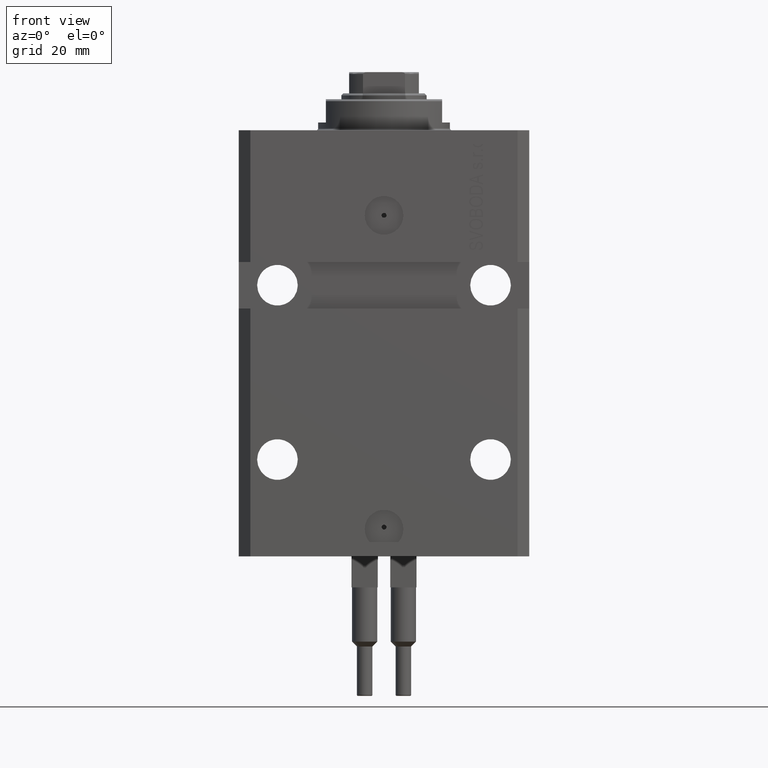
[diagram: clean part render]
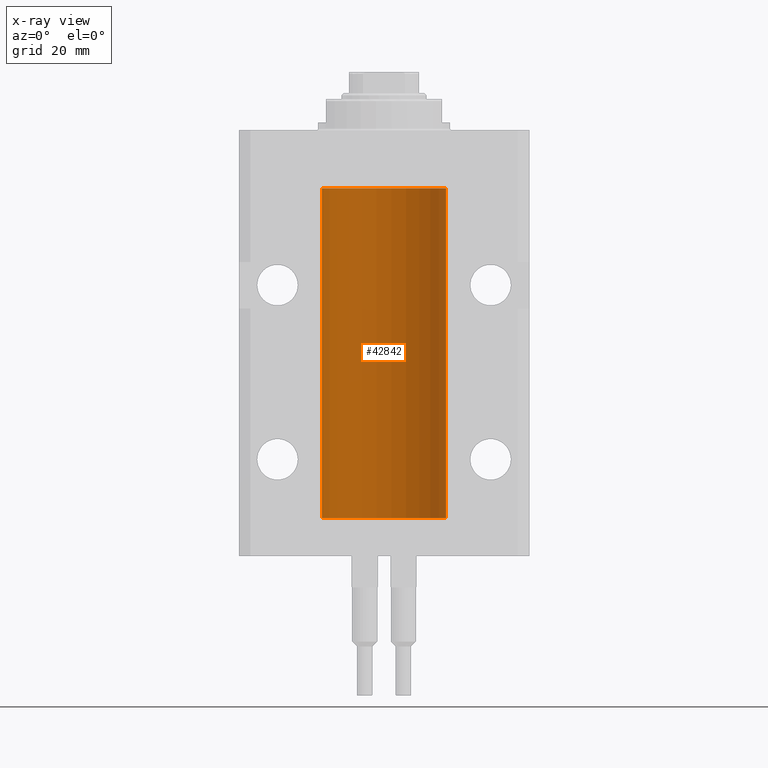
[diagram: x-ray — body ghosted, one internal face saturated and labeled with its STEP entity id]
A machine part, front view, then the same camera in x-ray: the body is ghosted and one INTERNAL B-rep face — a face not visible from any outside direction — is saturated and labeled: STEP entity #42842.
In plain terms, the highlighted cylindrical surface (partial cylindrical patch) has radius 16 mm, axis along (0, 0, 1).
Its self-contained STEP definition (entity closure, byte-faithful):
#228 = LINE ( 'NONE', #40404, #20150 ) ;
#307 = CARTESIAN_POINT ( 'NONE',  ( -15.98844267028591482, 0.6088369347963316081, -22.16324735024328518 ) ) ;
#2370 = AXIS2_PLACEMENT_3D ( 'NONE', #24267, #39606, #39118 ) ;
#2974 = CIRCLE ( 'NONE', #21649, 16.00000000000000000 ) ;
#3056 = VERTEX_POINT ( 'NONE', #34328 ) ;
#3435 = EDGE_CURVE ( 'NONE', #18519, #24024, #23548, .T. ) ;
#3538 = CARTESIAN_POINT ( 'NONE',  ( -16.00000000000013145, 3.685127046438747128E-13, -98.62500000000343903 ) ) ;
#4450 = CARTESIAN_POINT ( 'NONE',  ( -16.00000000000000000, 1.959434878635765131E-15, -100.0999999999999943 ) ) ;
#6395 = DIRECTION ( 'NONE',  ( 1.000000000000000000, 0.000000000000000000, 0.000000000000000000 ) ) ;
#6640 = CARTESIAN_POINT ( 'NONE',  ( -15.99707730059171240, 0.3150375992092407373, -21.45402333202571654 ) ) ;
#6731 = VECTOR ( 'NONE', #28397, 1000.000000000000000 ) ;
#7144 = DIRECTION ( 'NONE',  ( -0.000000000000000000, -0.000000000000000000, 1.000000000000000000 ) ) ;
#7374 = CARTESIAN_POINT ( 'NONE',  ( -15.99070426498503217, 0.5462220647145618058, -22.31460064614143590 ) ) ;
#7840 = CARTESIAN_POINT ( 'NONE',  ( 0.000000000000000000, 0.000000000000000000, -100.0999999999999943 ) ) ;
#8706 = ORIENTED_EDGE ( 'NONE', *, *, #8859, .F. ) ;
#8859 = EDGE_CURVE ( 'NONE', #3056, #16740, #228, .T. ) ;
#9263 = CARTESIAN_POINT ( 'NONE',  ( -16.00000000000000000, 1.643679961284177128E-16, -21.37499999999999645 ) ) ;
#9422 = CYLINDRICAL_SURFACE ( 'NONE', #2370, 16.00000000000000000 ) ;
#9520 = CARTESIAN_POINT ( 'NONE',  ( -15.98844267028590949, 0.6088369347963275002, -98.16324735024325321 ) ) ;
#9689 = EDGE_CURVE ( 'NONE', #44424, #12755, #31901, .T. ) ;
#10144 = FACE_OUTER_BOUND ( 'NONE', #26565, .T. ) ;
#11432 = VERTEX_POINT ( 'NONE', #3538 ) ;
#11617 = CARTESIAN_POINT ( 'NONE',  ( -16.00000000000000000, 1.959434878635765131E-15, -100.0999999999999943 ) ) ;
#12755 = VERTEX_POINT ( 'NONE', #20755 ) ;
#13426 = CARTESIAN_POINT ( 'NONE',  ( -15.98779057735153941, 0.6249419637998017141, -97.83670145863504786 ) ) ;
#13660 = CARTESIAN_POINT ( 'NONE',  ( -15.99548640841682712, 0.3843705577988784650, -97.50046628527007897 ) ) ;
#15630 = ORIENTED_EDGE ( 'NONE', *, *, #9689, .F. ) ;
#16200 = EDGE_CURVE ( 'NONE', #24024, #12755, #30793, .T. ) ;
#16488 = B_SPLINE_CURVE_WITH_KNOTS ( 'NONE', 3,
 ( #17321, #47010, #24838, #27103, #13660, #42884, #13426, #28735, #9520, #34422, #19802, #38312, #28493, #20713 ),
 .UNSPECIFIED., .F., .F.,
 ( 4, 2, 2, 2, 2, 2, 4 ),
 ( 1.003919637555167698E-18, 0.0002442776652680894158, 0.0004885553305361776391, 0.0009771106610723541940, 0.001221388326340463017, 0.001465665991608572274, 0.001954221322144760863 ),
 .UNSPECIFIED. ) ;
#16740 = VERTEX_POINT ( 'NONE', #18374 ) ;
#17321 = CARTESIAN_POINT ( 'NONE',  ( -16.00000000000000000, -1.303459030566954747E-14, -97.37500000000000000 ) ) ;
#18374 = CARTESIAN_POINT ( 'NONE',  ( -16.00000000000013145, 3.685127038166941002E-13, -22.62500000000341771 ) ) ;
#18519 = VERTEX_POINT ( 'NONE', #21497 ) ;
#19307 = EDGE_CURVE ( 'NONE', #45903, #11432, #45129, .T. ) ;
#19802 = CARTESIAN_POINT ( 'NONE',  ( -15.99228023727724057, 0.5003781296993360383, -98.38347829554236057 ) ) ;
#19979 = ORIENTED_EDGE ( 'NONE', *, *, #19307, .F. ) ;
#20048 = ORIENTED_EDGE ( 'NONE', *, *, #20078, .T. ) ;
#20078 = EDGE_CURVE ( 'NONE', #3056, #11432, #16488, .T. ) ;
#20150 = VECTOR ( 'NONE', #37245, 1000.000000000000000 ) ;
#20713 = CARTESIAN_POINT ( 'NONE',  ( -16.00000000000013145, 3.685127046438747128E-13, -98.62500000000343903 ) ) ;
#20755 = CARTESIAN_POINT ( 'NONE',  ( -16.00000000000000000, 1.959434878635765131E-15, -15.00000000000000000 ) ) ;
#21497 = CARTESIAN_POINT ( 'NONE',  ( 16.00000000000000000, 0.000000000000000000, -100.0999999999999943 ) ) ;
#21649 = AXIS2_PLACEMENT_3D ( 'NONE', #7840, #22682, #38009 ) ;
#21989 = CARTESIAN_POINT ( 'NONE',  ( -16.00000000000000711, 0.08259886010189904093, -21.37500000000000000 ) ) ;
#22256 = AXIS2_PLACEMENT_3D ( 'NONE', #39746, #39025, #6395 ) ;
#22458 = ORIENTED_EDGE ( 'NONE', *, *, #24640, .F. ) ;
#22473 = CARTESIAN_POINT ( 'NONE',  ( -15.98778717651346071, 0.6250289588122140971, -22.08131585687052478 ) ) ;
#22682 = DIRECTION ( 'NONE',  ( 0.000000000000000000, 0.000000000000000000, 1.000000000000000000 ) ) ;
#23548 = LINE ( 'NONE', #38402, #6731 ) ;
#24024 = VERTEX_POINT ( 'NONE', #29301 ) ;
#24267 = CARTESIAN_POINT ( 'NONE',  ( 0.000000000000000000, 0.000000000000000000, -100.0999999999999943 ) ) ;
#24640 = EDGE_CURVE ( 'NONE', #18519, #45903, #2974, .T. ) ;
#24838 = CARTESIAN_POINT ( 'NONE',  ( -15.99934216141748244, 0.1636497843296308152, -97.39126528029306940 ) ) ;
#24840 = CARTESIAN_POINT ( 'NONE',  ( -16.00000000000000000, 1.959434878635765131E-15, -100.0999999999999943 ) ) ;
#24858 = ORIENTED_EDGE ( 'NONE', *, *, #37182, .T. ) ;
#26565 = EDGE_LOOP ( 'NONE', ( #19979, #22458, #28832, #36463, #15630, #24858, #8706, #20048 ) ) ;
#27103 = CARTESIAN_POINT ( 'NONE',  ( -15.99707730059171240, 0.3150375992092294686, -97.45402333202572720 ) ) ;
#28153 = CARTESIAN_POINT ( 'NONE',  ( -16.00000000000000000, 0.1631714642025800244, -22.62499999999985789 ) ) ;
#28397 = DIRECTION ( 'NONE',  ( -0.000000000000000000, -0.000000000000000000, 1.000000000000000000 ) ) ;
#28493 = CARTESIAN_POINT ( 'NONE',  ( -15.99999999999998934, 0.1631714642025804407, -98.62499999999987210 ) ) ;
#28735 = CARTESIAN_POINT ( 'NONE',  ( -15.98778717651346604, 0.6250289588122097673, -98.08131585687051768 ) ) ;
#28832 = ORIENTED_EDGE ( 'NONE', *, *, #3435, .T. ) ;
#29301 = CARTESIAN_POINT ( 'NONE',  ( 16.00000000000000000, 0.000000000000000000, -15.00000000000000000 ) ) ;
#29526 = CARTESIAN_POINT ( 'NONE',  ( -15.99711699979842017, 0.3253759916140657737, -22.55856151623175521 ) ) ;
#29774 = CARTESIAN_POINT ( 'NONE',  ( -15.99548640841683067, 0.3843705577988847377, -21.50046628527008608 ) ) ;
#30793 = CIRCLE ( 'NONE', #22256, 16.00000000000000000 ) ;
#31901 = LINE ( 'NONE', #24840, #37948 ) ;
#33666 = CARTESIAN_POINT ( 'NONE',  ( -15.98779057735153941, 0.6249419637998100407, -21.83670145863507273 ) ) ;
#34328 = CARTESIAN_POINT ( 'NONE',  ( -16.00000000000000000, -1.303459030566954747E-14, -97.37500000000000000 ) ) ;
#34422 = CARTESIAN_POINT ( 'NONE',  ( -15.99070426498503572, 0.5462220647145610286, -98.31460064614144301 ) ) ;
#36463 = ORIENTED_EDGE ( 'NONE', *, *, #16200, .T. ) ;
#37170 = B_SPLINE_CURVE_WITH_KNOTS ( 'NONE', 3,
 ( #44143, #21989, #39998, #6640, #29774, #44646, #33666, #22473, #307, #7374, #47556, #29526, #28153, #43028 ),
 .UNSPECIFIED., .F., .F.,
 ( 4, 2, 2, 2, 2, 2, 4 ),
 ( 1.597328219370744179E-19, 0.0002442776652680942405, 0.0004885553305361882643, 0.0009771106610723839011, 0.001221388326340481665, 0.001465665991608579430, 0.001954221322144767369 ),
 .UNSPECIFIED. ) ;
#37182 = EDGE_CURVE ( 'NONE', #44424, #16740, #37170, .T. ) ;
#37245 = DIRECTION ( 'NONE',  ( -0.000000000000000000, -0.000000000000000000, 1.000000000000000000 ) ) ;
#37948 = VECTOR ( 'NONE', #39454, 1000.000000000000000 ) ;
#38009 = DIRECTION ( 'NONE',  ( 1.000000000000000000, 0.000000000000000000, 0.000000000000000000 ) ) ;
#38312 = CARTESIAN_POINT ( 'NONE',  ( -15.99711699979841661, 0.3253759916140614439, -98.55856151623174810 ) ) ;
#38402 = CARTESIAN_POINT ( 'NONE',  ( 16.00000000000000000, 0.000000000000000000, -100.0999999999999943 ) ) ;
#39025 = DIRECTION ( 'NONE',  ( 0.000000000000000000, 0.000000000000000000, 1.000000000000000000 ) ) ;
#39118 = DIRECTION ( 'NONE',  ( 1.000000000000000000, 0.000000000000000000, 0.000000000000000000 ) ) ;
#39454 = DIRECTION ( 'NONE',  ( -0.000000000000000000, -0.000000000000000000, 1.000000000000000000 ) ) ;
#39606 = DIRECTION ( 'NONE',  ( -0.000000000000000000, -0.000000000000000000, 1.000000000000000000 ) ) ;
#39746 = CARTESIAN_POINT ( 'NONE',  ( 0.000000000000000000, 0.000000000000000000, -15.00000000000000000 ) ) ;
#39998 = CARTESIAN_POINT ( 'NONE',  ( -15.99934216141748244, 0.1636497843296417787, -21.39126528029306229 ) ) ;
#40241 = VECTOR ( 'NONE', #7144, 1000.000000000000000 ) ;
#40404 = CARTESIAN_POINT ( 'NONE',  ( -16.00000000000000000, 1.959434878635765131E-15, -100.0999999999999943 ) ) ;
#42842 = ADVANCED_FACE ( 'NONE', ( #10144 ), #9422, .F. ) ;
#42884 = CARTESIAN_POINT ( 'NONE',  ( -15.99070653155267685, 0.5573233280232928744, -97.67348148680505915 ) ) ;
#43028 = CARTESIAN_POINT ( 'NONE',  ( -16.00000000000013145, 3.685127038166941002E-13, -22.62500000000341771 ) ) ;
#44143 = CARTESIAN_POINT ( 'NONE',  ( -16.00000000000000000, 1.643679961284177128E-16, -21.37499999999999645 ) ) ;
#44424 = VERTEX_POINT ( 'NONE', #9263 ) ;
#44646 = CARTESIAN_POINT ( 'NONE',  ( -15.99070653155267685, 0.5573233280232986475, -21.67348148680506625 ) ) ;
#45129 = LINE ( 'NONE', #4450, #40241 ) ;
#45903 = VERTEX_POINT ( 'NONE', #11617 ) ;
#47010 = CARTESIAN_POINT ( 'NONE',  ( -16.00000000000000711, 0.08259886010188650929, -97.37500000000000000 ) ) ;
#47556 = CARTESIAN_POINT ( 'NONE',  ( -15.99228023727724413, 0.5003781296993413674, -22.38347829554236057 ) ) ;